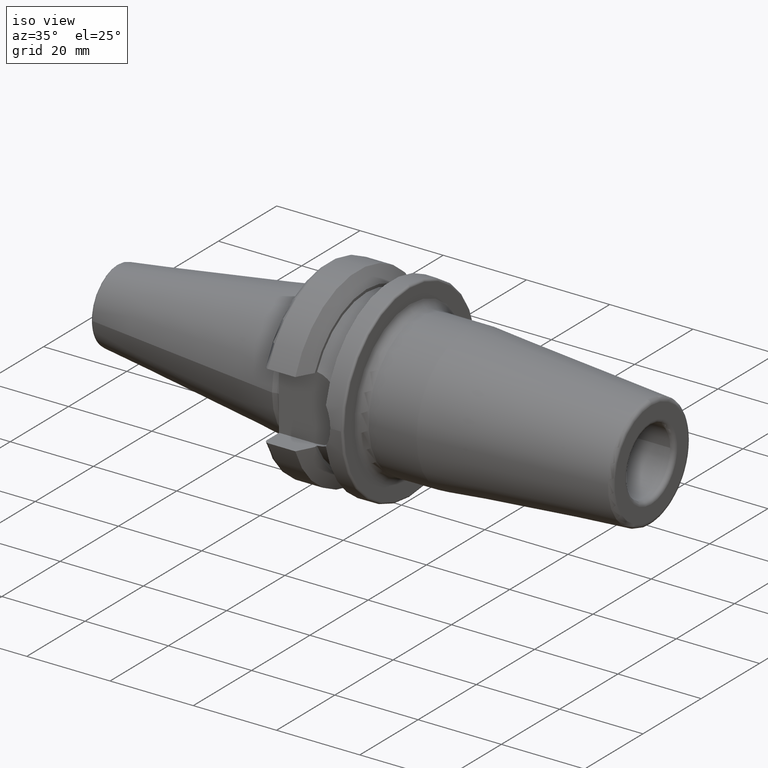
[diagram: clean part render]
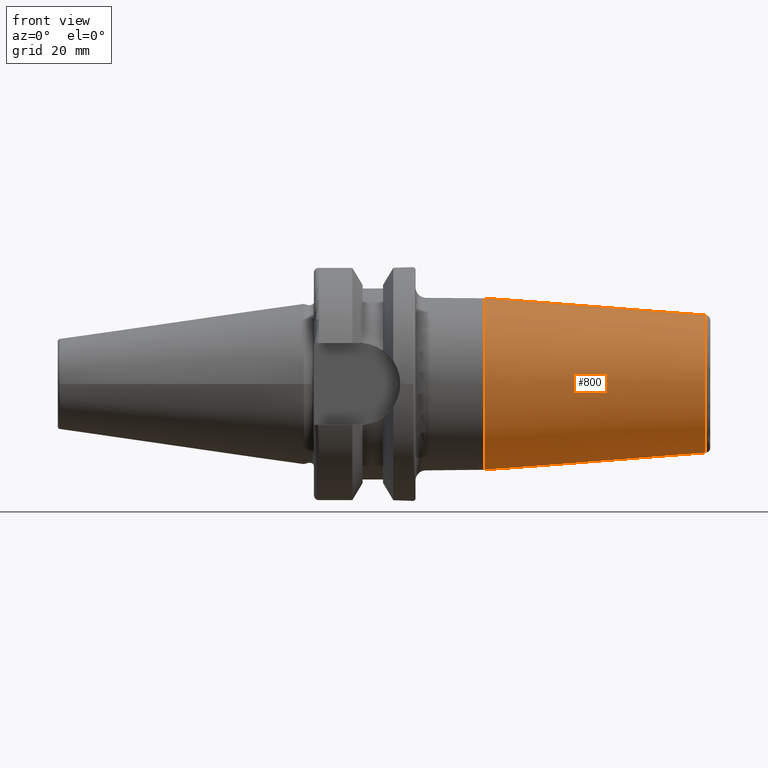
[diagram: tour spotlight — one face highlighted and labeled with its STEP entity id]
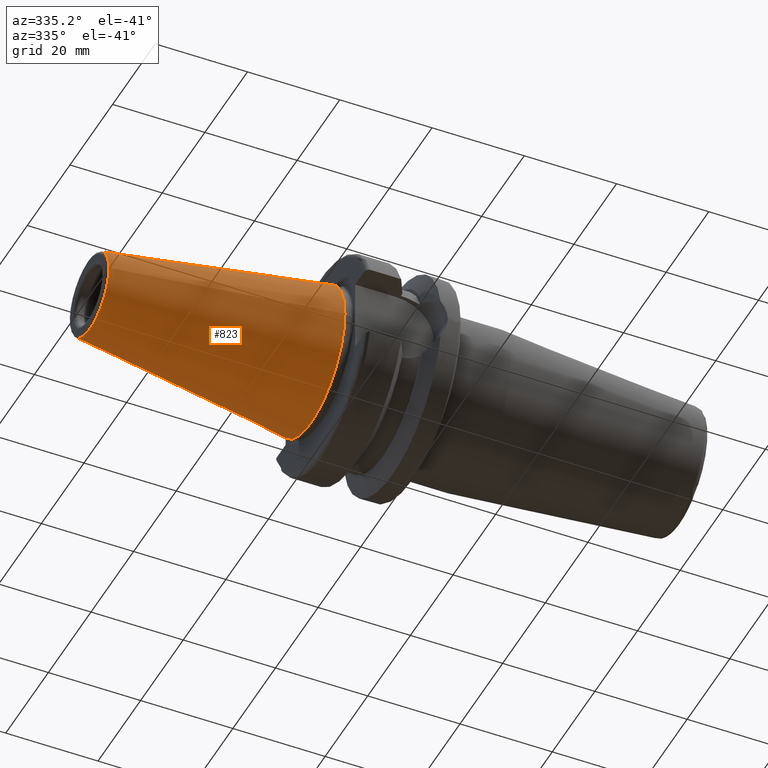
[diagram: tour spotlight — one face highlighted and labeled with its STEP entity id]
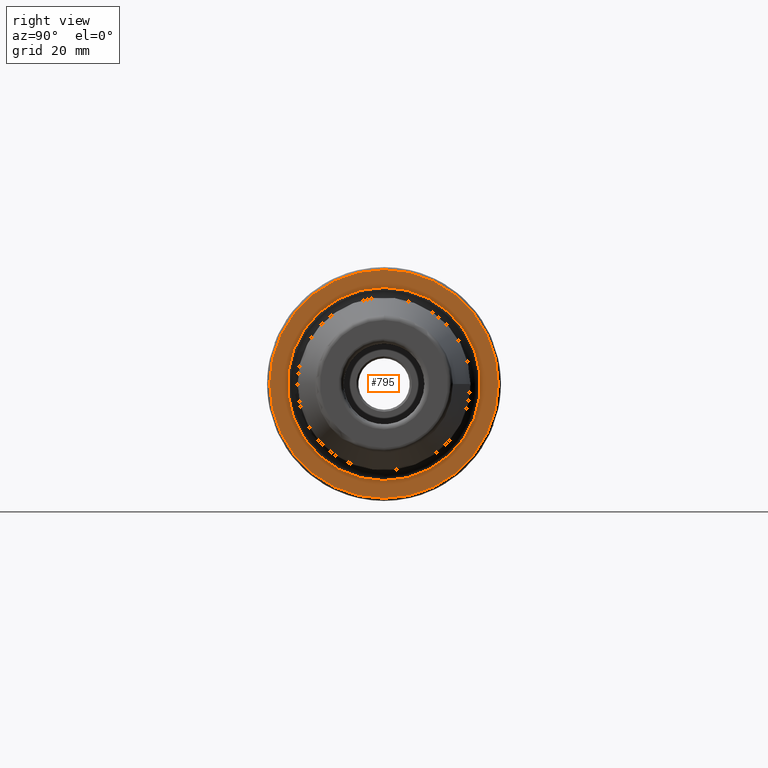
[diagram: tour spotlight — one face highlighted and labeled with its STEP entity id]
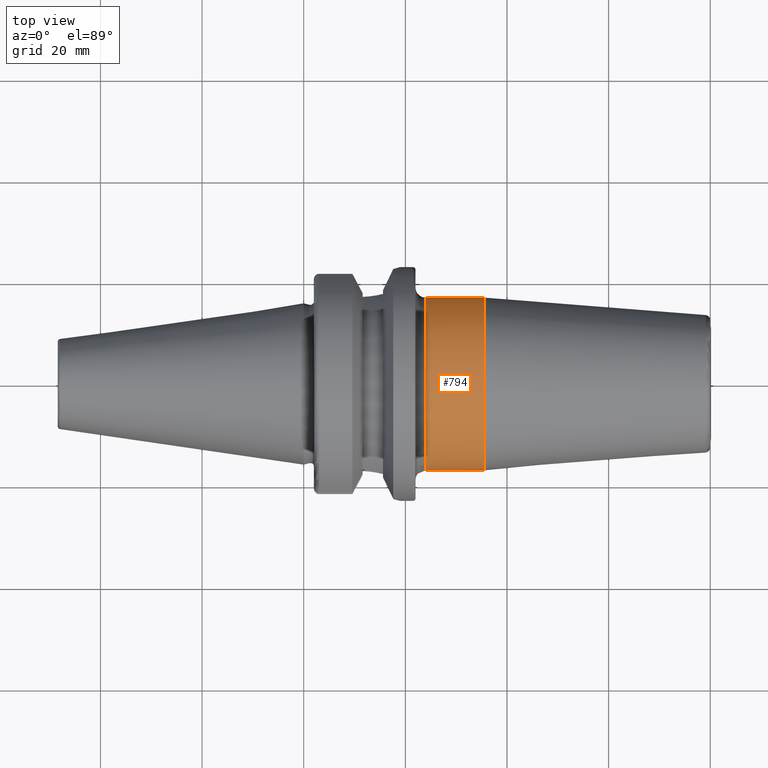
[diagram: tour spotlight — one face highlighted and labeled with its STEP entity id]
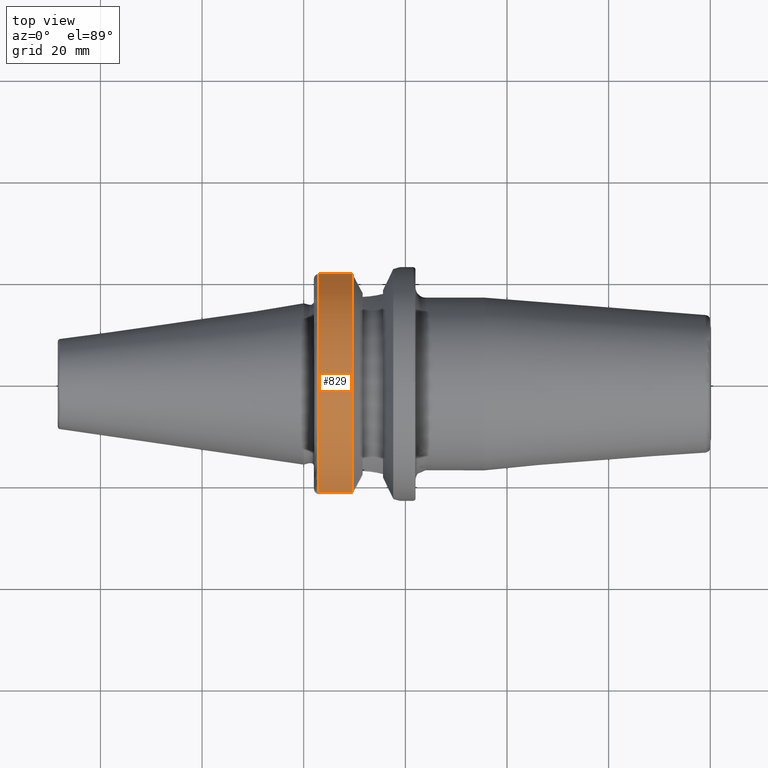
[diagram: tour spotlight — one face highlighted and labeled with its STEP entity id]
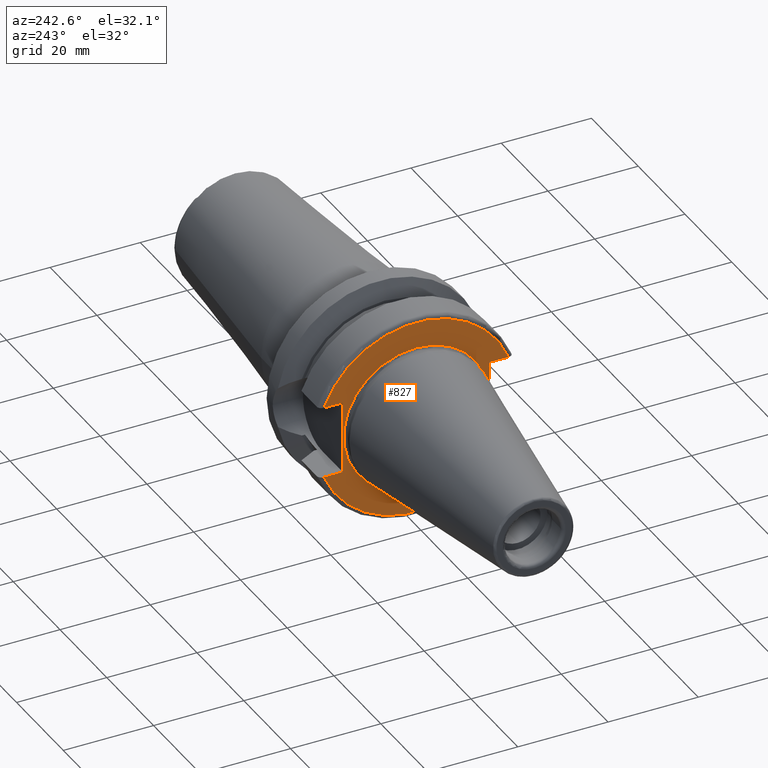
[diagram: tour spotlight — one face highlighted and labeled with its STEP entity id]
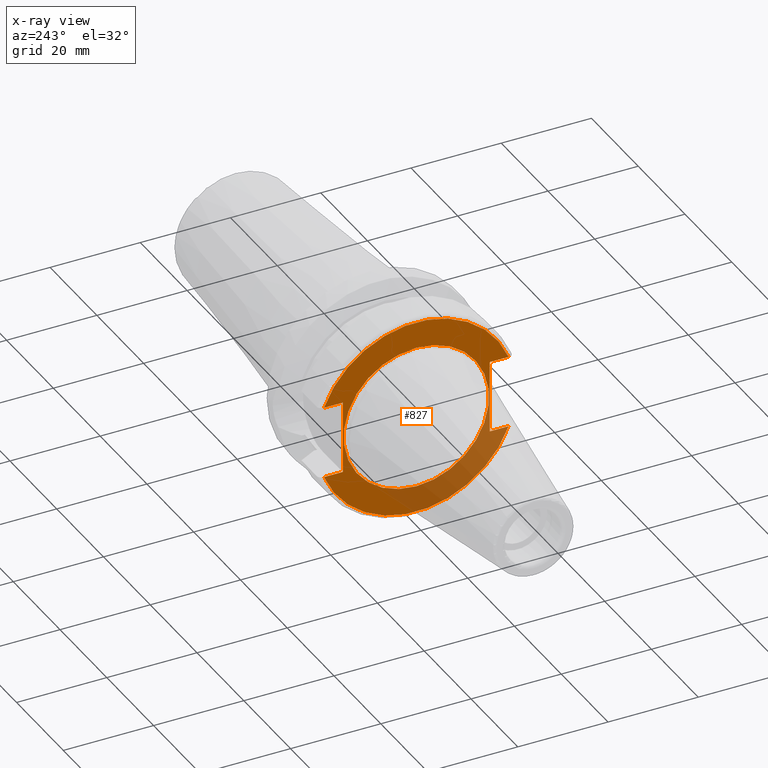
[diagram: x-ray of the same camera — body ghosted, this tour face saturated]
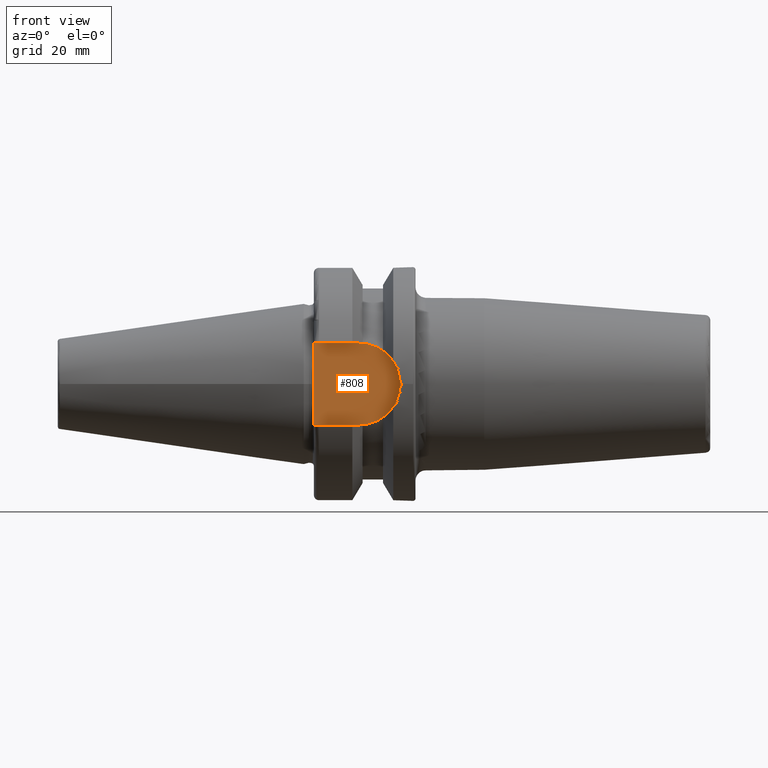
[diagram: tour spotlight — one face highlighted and labeled with its STEP entity id]
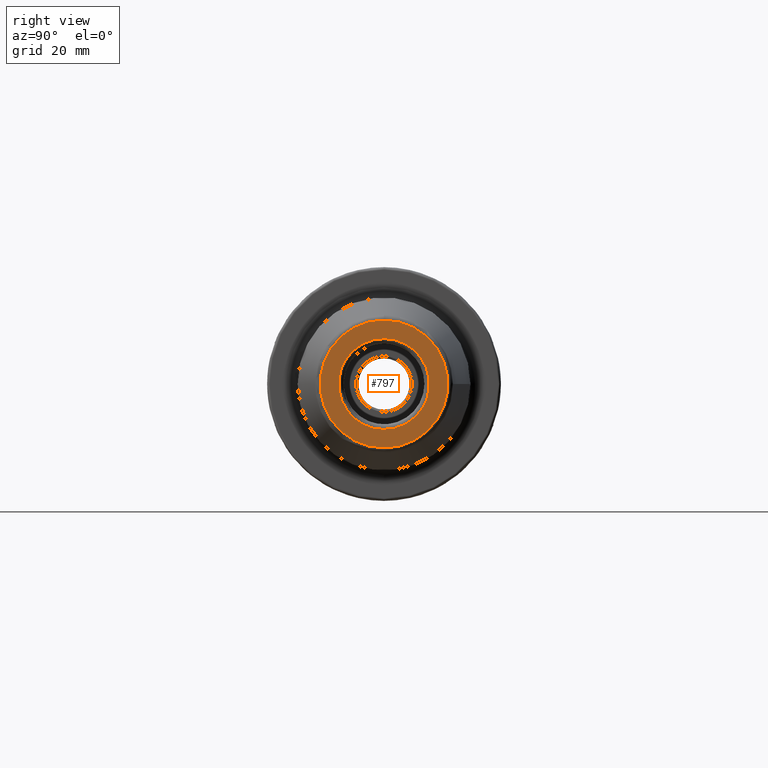
[diagram: tour spotlight — one face highlighted and labeled with its STEP entity id]
A machine part: a face-by-face anatomy tour. The part has 50 B-rep faces; the first image is the clean iso view, then the 8 largest visible faces are spotlighted one at a time (largest first), each with its STEP entity span.

Face 1 — front view, entity #800. In plain terms, the highlighted conical surface has half-angle 4.5 deg.
Definition (entity closure, byte-faithful):
#95=FACE_OUTER_BOUND('',#147,.T.);
#147=EDGE_LOOP('',(#574,#575,#576,#577,#578));
#197=LINE('',#1286,#237);
#237=VECTOR('',#1038,15.25);
#281=CIRCLE('',#876,17.);
#290=CIRCLE('',#890,13.5725268420749);
#291=CIRCLE('',#891,13.5725268420749);
#340=VERTEX_POINT('',#1258);
#347=VERTEX_POINT('',#1280);
#348=VERTEX_POINT('',#1282);
#423=EDGE_CURVE('',#340,#340,#281,.T.);
#434=EDGE_CURVE('',#347,#348,#290,.T.);
#435=EDGE_CURVE('',#348,#347,#291,.T.);
#436=EDGE_CURVE('',#348,#340,#197,.T.);
#574=ORIENTED_EDGE('',*,*,#434,.F.);
#575=ORIENTED_EDGE('',*,*,#435,.F.);
#576=ORIENTED_EDGE('',*,*,#436,.T.);
#577=ORIENTED_EDGE('',*,*,#423,.T.);
#578=ORIENTED_EDGE('',*,*,#436,.F.);
#783=CONICAL_SURFACE('',#892,15.25,0.0785398163397455);
#800=ADVANCED_FACE('',(#95),#783,.T.);
#876=AXIS2_PLACEMENT_3D('',#1259,#1002,#1003);
#890=AXIS2_PLACEMENT_3D('',#1283,#1032,#1033);
#891=AXIS2_PLACEMENT_3D('',#1284,#1034,#1035);
#892=AXIS2_PLACEMENT_3D('',#1285,#1036,#1037);
#1002=DIRECTION('center_axis',(1.,0.,0.));
#1003=DIRECTION('ref_axis',(0.,0.,-1.));
#1032=DIRECTION('center_axis',(1.,0.,0.));
#1033=DIRECTION('ref_axis',(0.,1.,3.06161699786838E-17));
#1034=DIRECTION('center_axis',(1.,0.,0.));
#1035=DIRECTION('ref_axis',(0.,1.,3.06161699786838E-17));
#1036=DIRECTION('center_axis',(-1.,0.,0.));
#1037=DIRECTION('ref_axis',(0.,-1.,0.));
#1038=DIRECTION('',(-0.996917333733128,0.0784590957278456,9.60846804471019E-18));
#1258=CARTESIAN_POINT('',(35.5282834233889,17.,2.0818995585505E-15));
#1259=CARTESIAN_POINT('Origin',(35.5282834233889,0.,0.));
#1280=CARTESIAN_POINT('',(79.0784590957279,-1.66215515534886E-15,13.5725268420749));
#1282=CARTESIAN_POINT('',(79.0784590957279,13.5725268420749,1.66215515534886E-15));
#1283=CARTESIAN_POINT('Origin',(79.0784590957279,0.,1.24661636651164E-15));
#1284=CARTESIAN_POINT('Origin',(79.0784590957279,0.,1.24661636651164E-15));
#1285=CARTESIAN_POINT('Origin',(57.7641417116944,0.,0.));
#1286=CARTESIAN_POINT('',(57.7641417116944,15.25,1.86758636869971E-15));

Face 2 — auxiliary view, entity #823. In plain terms, the highlighted conical surface has half-angle 8.297 deg.
Definition (entity closure, byte-faithful):
#118=FACE_OUTER_BOUND('',#172,.T.);
#172=EDGE_LOOP('',(#701,#702,#703,#704,#705));
#227=LINE('',#1553,#267);
#267=VECTOR('',#1158,12.3770304778568);
#309=CIRCLE('',#932,8.87906095571352);
#310=CIRCLE('',#933,8.87906095571352);
#313=CIRCLE('',#937,15.875);
#399=VERTEX_POINT('',#1543);
#400=VERTEX_POINT('',#1544);
#402=VERTEX_POINT('',#1551);
#506=EDGE_CURVE('',#399,#400,#309,.T.);
#507=EDGE_CURVE('',#400,#399,#310,.T.);
#510=EDGE_CURVE('',#402,#402,#313,.T.);
#511=EDGE_CURVE('',#402,#399,#227,.T.);
#701=ORIENTED_EDGE('',*,*,#510,.F.);
#702=ORIENTED_EDGE('',*,*,#511,.T.);
#703=ORIENTED_EDGE('',*,*,#506,.T.);
#704=ORIENTED_EDGE('',*,*,#507,.T.);
#705=ORIENTED_EDGE('',*,*,#511,.F.);
#787=CONICAL_SURFACE('',#936,12.3770304778568,0.144812498238939);
#823=ADVANCED_FACE('',(#118),#787,.T.);
#932=AXIS2_PLACEMENT_3D('',#1545,#1146,#1147);
#933=AXIS2_PLACEMENT_3D('',#1546,#1148,#1149);
#936=AXIS2_PLACEMENT_3D('',#1550,#1154,#1155);
#937=AXIS2_PLACEMENT_3D('',#1552,#1156,#1157);
#1146=DIRECTION('center_axis',(1.,1.62798202122572E-21,0.));
#1147=DIRECTION('ref_axis',(0.,0.,-1.));
#1148=DIRECTION('center_axis',(1.,1.62798202122572E-21,0.));
#1149=DIRECTION('ref_axis',(0.,0.,-1.));
#1154=DIRECTION('center_axis',(1.,1.62798202122572E-21,0.));
#1155=DIRECTION('ref_axis',(0.,1.,0.));
#1156=DIRECTION('center_axis',(1.,1.62798202122572E-21,0.));
#1157=DIRECTION('ref_axis',(0.,0.,-1.));
#1158=DIRECTION('',(-0.989532981063282,0.144306893071729,1.76724974695192E-17));
#1543=CARTESIAN_POINT('',(-47.9721534465359,-8.87906095571352,-1.08737135788488E-15));
#1544=CARTESIAN_POINT('',(-47.9721534465359,9.94286113939637E-16,8.87906095571352));
#1545=CARTESIAN_POINT('Origin',(-47.9721534465359,2.08165747182452E-15,
0.));
#1546=CARTESIAN_POINT('Origin',(-47.9721534465359,2.08165747182452E-15,
0.));
#1550=CARTESIAN_POINT('Origin',(-23.9860767232679,2.08169652072618E-15,
0.));
#1551=CARTESIAN_POINT('',(-1.33226762955019E-14,-15.875,-1.94412679364642E-15));
#1552=CARTESIAN_POINT('Origin',(-8.88178419700125E-15,2.08173556962785E-15,
0.));
#1553=CARTESIAN_POINT('',(-23.9860767232679,-12.3770304778568,-1.51574907576565E-15));

Face 3 — right view, entity #795. In plain terms, the highlighted planar face has unit normal (1, 0, 0).
Definition (entity closure, byte-faithful):
#38=FACE_BOUND('',#141,.T.);
#45=PLANE('',#877);
#90=FACE_OUTER_BOUND('',#140,.T.);
#140=EDGE_LOOP('',(#555));
#141=EDGE_LOOP('',(#556));
#280=CIRCLE('',#874,19.);
#282=CIRCLE('',#878,22.5);
#339=VERTEX_POINT('',#1254);
#341=VERTEX_POINT('',#1262);
#422=EDGE_CURVE('',#339,#339,#280,.T.);
#425=EDGE_CURVE('',#341,#341,#282,.T.);
#555=ORIENTED_EDGE('',*,*,#425,.T.);
#556=ORIENTED_EDGE('',*,*,#422,.F.);
#795=ADVANCED_FACE('',(#90,#38),#45,.T.);
#874=AXIS2_PLACEMENT_3D('',#1256,#998,#999);
#877=AXIS2_PLACEMENT_3D('',#1261,#1005,#1006);
#878=AXIS2_PLACEMENT_3D('',#1263,#1007,#1008);
#998=DIRECTION('center_axis',(1.,1.62798202122572E-21,0.));
#999=DIRECTION('ref_axis',(-1.62798202122572E-21,1.,1.22464679914735E-16));
#1005=DIRECTION('center_axis',(1.,1.62798202122572E-21,0.));
#1006=DIRECTION('ref_axis',(0.,0.,-1.));
#1007=DIRECTION('center_axis',(1.,1.62798202122572E-21,0.));
#1008=DIRECTION('ref_axis',(0.,0.,-1.));
#1254=CARTESIAN_POINT('',(22.,-2.32683217434401E-15,-19.));
#1256=CARTESIAN_POINT('Origin',(22.,-3.25596404245145E-21,0.));
#1261=CARTESIAN_POINT('Origin',(22.,2.0818995585505E-15,0.));
#1262=CARTESIAN_POINT('',(22.,-6.73683912849231E-16,22.5));
#1263=CARTESIAN_POINT('Origin',(22.,2.08177138523231E-15,0.));

Face 4 — top view, entity #794. In plain terms, the highlighted cylindrical surface (bore or boss wall) has radius 17 mm, axis along (1, 0, 0).
Definition (entity closure, byte-faithful):
#72=CYLINDRICAL_SURFACE('',#875,17.);
#89=FACE_OUTER_BOUND('',#139,.T.);
#139=EDGE_LOOP('',(#550,#551,#552,#553,#554));
#195=LINE('',#1260,#235);
#235=VECTOR('',#1004,17.);
#277=CIRCLE('',#871,17.);
#278=CIRCLE('',#872,17.);
#281=CIRCLE('',#876,17.);
#337=VERTEX_POINT('',#1250);
#338=VERTEX_POINT('',#1251);
#340=VERTEX_POINT('',#1258);
#419=EDGE_CURVE('',#337,#338,#277,.T.);
#420=EDGE_CURVE('',#338,#337,#278,.T.);
#423=EDGE_CURVE('',#340,#340,#281,.T.);
#424=EDGE_CURVE('',#340,#338,#195,.T.);
#550=ORIENTED_EDGE('',*,*,#423,.F.);
#551=ORIENTED_EDGE('',*,*,#424,.T.);
#552=ORIENTED_EDGE('',*,*,#419,.F.);
#553=ORIENTED_EDGE('',*,*,#420,.F.);
#554=ORIENTED_EDGE('',*,*,#424,.F.);
#794=ADVANCED_FACE('',(#89),#72,.T.);
#871=AXIS2_PLACEMENT_3D('',#1252,#992,#993);
#872=AXIS2_PLACEMENT_3D('',#1253,#994,#995);
#875=AXIS2_PLACEMENT_3D('',#1257,#1000,#1001);
#876=AXIS2_PLACEMENT_3D('',#1259,#1002,#1003);
#992=DIRECTION('center_axis',(-1.,-1.62798202122572E-21,0.));
#993=DIRECTION('ref_axis',(0.,1.,1.22464679914735E-16));
#994=DIRECTION('center_axis',(-1.,-1.62798202122572E-21,0.));
#995=DIRECTION('ref_axis',(0.,1.,1.22464679914735E-16));
#1000=DIRECTION('center_axis',(1.,0.,0.));
#1001=DIRECTION('ref_axis',(0.,-1.,0.));
#1002=DIRECTION('center_axis',(1.,0.,0.));
#1003=DIRECTION('ref_axis',(0.,0.,-1.));
#1004=DIRECTION('',(-1.,0.,0.));
#1250=CARTESIAN_POINT('',(24.,-2.0818995585505E-15,-17.));
#1251=CARTESIAN_POINT('',(24.,17.,2.0818995585505E-15));
#1252=CARTESIAN_POINT('Origin',(24.,0.,0.));
#1253=CARTESIAN_POINT('Origin',(24.,0.,0.));
#1257=CARTESIAN_POINT('Origin',(28.7641417116944,0.,0.));
#1258=CARTESIAN_POINT('',(35.5282834233889,17.,2.0818995585505E-15));
#1259=CARTESIAN_POINT('Origin',(35.5282834233889,0.,0.));
#1260=CARTESIAN_POINT('',(28.7641417116944,17.,2.0818995585505E-15));

Face 5 — top view, entity #829. In plain terms, the highlighted cylindrical surface (partial cylindrical patch) has radius 23 mm, axis along (1, 0, 0).
Definition (entity closure, byte-faithful):
#82=CYLINDRICAL_SURFACE('',#950,23.);
#124=FACE_OUTER_BOUND('',#179,.T.);
#179=EDGE_LOOP('',(#733,#734,#735,#736));
#206=LINE('',#1372,#246);
#223=LINE('',#1533,#263);
#246=VECTOR('',#1067,10.);
#263=VECTOR('',#1132,10.);
#320=CIRCLE('',#949,23.);
#321=CIRCLE('',#951,23.);
#367=VERTEX_POINT('',#1367);
#368=VERTEX_POINT('',#1371);
#394=VERTEX_POINT('',#1514);
#397=VERTEX_POINT('',#1522);
#458=EDGE_CURVE('',#368,#367,#206,.T.);
#501=EDGE_CURVE('',#394,#397,#223,.T.);
#520=EDGE_CURVE('',#397,#368,#320,.T.);
#521=EDGE_CURVE('',#394,#367,#321,.T.);
#733=ORIENTED_EDGE('',*,*,#458,.T.);
#734=ORIENTED_EDGE('',*,*,#521,.F.);
#735=ORIENTED_EDGE('',*,*,#501,.T.);
#736=ORIENTED_EDGE('',*,*,#520,.T.);
#829=ADVANCED_FACE('',(#124),#82,.T.);
#949=AXIS2_PLACEMENT_3D('',#1571,#1183,#1184);
#950=AXIS2_PLACEMENT_3D('',#1572,#1185,#1186);
#951=AXIS2_PLACEMENT_3D('',#1573,#1187,#1188);
#1067=DIRECTION('',(1.,1.62798202122572E-21,0.));
#1132=DIRECTION('',(-1.,-1.62798202122572E-21,0.));
#1183=DIRECTION('center_axis',(1.,1.62798202122572E-21,0.));
#1184=DIRECTION('ref_axis',(0.,0.,-1.));
#1185=DIRECTION('center_axis',(1.,1.62798202122572E-21,0.));
#1186=DIRECTION('ref_axis',(0.,1.,0.));
#1187=DIRECTION('center_axis',(1.,1.62798202122572E-21,0.));
#1188=DIRECTION('ref_axis',(0.,0.,-1.));
#1367=CARTESIAN_POINT('',(9.57005904049381,-21.5452430944744,8.05));
#1371=CARTESIAN_POINT('',(2.99999999999999,-21.5452430944745,8.05));
#1372=CARTESIAN_POINT('',(6.2850295202469,-21.5452430944745,8.05));
#1514=CARTESIAN_POINT('',(9.57005904049381,21.5452430944744,8.05));
#1522=CARTESIAN_POINT('',(2.99999999999999,21.5452430944745,8.05));
#1533=CARTESIAN_POINT('',(6.2850295202469,21.5452430944745,8.05));
#1571=CARTESIAN_POINT('Origin',(2.99999999999999,2.08174045357391E-15,0.));
#1572=CARTESIAN_POINT('Origin',(6.2850295202469,2.08174580154291E-15,0.));
#1573=CARTESIAN_POINT('Origin',(9.57005904049381,2.08175114951191E-15,0.));

Face 6 — auxiliary view, entity #827. An x-ray twin of the same camera follows (body ghosted, this face saturated) — the face is partly hidden behind the body. In plain terms, the highlighted planar face has unit normal (-1, -0, 0).
Definition (entity closure, byte-faithful):
#42=FACE_BOUND('',#177,.T.);
#57=PLANE('',#946);
#122=FACE_OUTER_BOUND('',#176,.T.);
#176=EDGE_LOOP('',(#720,#721,#722,#723,#724,#725,#726,#727));
#177=EDGE_LOOP('',(#728));
#207=LINE('',#1385,#247);
#210=LINE('',#1395,#250);
#212=LINE('',#1409,#252);
#222=LINE('',#1521,#262);
#224=LINE('',#1536,#264);
#226=LINE('',#1539,#266);
#247=VECTOR('',#1068,10.);
#250=VECTOR('',#1073,10.);
#252=VECTOR('',#1077,10.);
#262=VECTOR('',#1131,10.);
#264=VECTOR('',#1135,10.);
#266=VECTOR('',#1139,10.);
#306=CIRCLE('',#923,22.);
#318=CIRCLE('',#945,16.1);
#319=CIRCLE('',#947,22.);
#369=VERTEX_POINT('',#1373);
#370=VERTEX_POINT('',#1384);
#372=VERTEX_POINT('',#1392);
#373=VERTEX_POINT('',#1394);
#386=VERTEX_POINT('',#1472);
#395=VERTEX_POINT('',#1518);
#396=VERTEX_POINT('',#1520);
#398=VERTEX_POINT('',#1535);
#406=VERTEX_POINT('',#1565);
#460=EDGE_CURVE('',#370,#369,#207,.T.);
#464=EDGE_CURVE('',#373,#372,#210,.T.);
#467=EDGE_CURVE('',#372,#370,#212,.T.);
#487=EDGE_CURVE('',#373,#386,#306,.T.);
#499=EDGE_CURVE('',#396,#395,#222,.T.);
#502=EDGE_CURVE('',#398,#386,#224,.T.);
#504=EDGE_CURVE('',#395,#398,#226,.T.);
#518=EDGE_CURVE('',#406,#406,#318,.T.);
#519=EDGE_CURVE('',#396,#369,#319,.T.);
#720=ORIENTED_EDGE('',*,*,#460,.T.);
#721=ORIENTED_EDGE('',*,*,#519,.F.);
#722=ORIENTED_EDGE('',*,*,#499,.T.);
#723=ORIENTED_EDGE('',*,*,#504,.T.);
#724=ORIENTED_EDGE('',*,*,#502,.T.);
#725=ORIENTED_EDGE('',*,*,#487,.F.);
#726=ORIENTED_EDGE('',*,*,#464,.T.);
#727=ORIENTED_EDGE('',*,*,#467,.T.);
#728=ORIENTED_EDGE('',*,*,#518,.T.);
#827=ADVANCED_FACE('',(#122,#42),#57,.T.);
#923=AXIS2_PLACEMENT_3D('',#1473,#1118,#1119);
#945=AXIS2_PLACEMENT_3D('',#1567,#1175,#1176);
#946=AXIS2_PLACEMENT_3D('',#1568,#1177,#1178);
#947=AXIS2_PLACEMENT_3D('',#1569,#1179,#1180);
#1068=DIRECTION('',(1.62798202122572E-21,-1.,0.));
#1073=DIRECTION('',(-1.62798202122572E-21,1.,-8.07786870900826E-37));
#1077=DIRECTION('',(0.,0.,1.));
#1118=DIRECTION('center_axis',(1.,1.62798202122572E-21,0.));
#1119=DIRECTION('ref_axis',(0.,0.,-1.));
#1131=DIRECTION('',(1.62798202122572E-21,-1.,0.));
#1135=DIRECTION('',(-1.62798202122572E-21,1.,-8.07786870900826E-37));
#1139=DIRECTION('',(0.,0.,-1.));
#1175=DIRECTION('center_axis',(1.,1.62798202122572E-21,0.));
#1176=DIRECTION('ref_axis',(0.,0.,-1.));
#1177=DIRECTION('center_axis',(-1.,-1.62798202122572E-21,0.));
#1178=DIRECTION('ref_axis',(0.,0.,1.));
#1179=DIRECTION('center_axis',(1.,1.62798202122572E-21,0.));
#1180=DIRECTION('ref_axis',(0.,0.,-1.));
#1373=CARTESIAN_POINT('',(1.99999999999999,-20.4743131752936,8.05));
#1384=CARTESIAN_POINT('',(1.99999999999999,-16.3,8.05));
#1385=CARTESIAN_POINT('',(1.99999999999999,2.85,8.05));
#1392=CARTESIAN_POINT('',(1.99999999999999,-16.3,-8.05));
#1394=CARTESIAN_POINT('',(1.99999999999999,-20.4743131752936,-8.05));
#1395=CARTESIAN_POINT('',(1.99999999999999,2.85,-8.05));
#1409=CARTESIAN_POINT('',(1.99999999999999,-16.3,0.));
#1472=CARTESIAN_POINT('',(1.99999999999999,20.4743131752936,-8.05));
#1473=CARTESIAN_POINT('Origin',(1.99999999999999,2.08173882559189E-15,0.));
#1518=CARTESIAN_POINT('',(1.99999999999999,16.3,8.05));
#1520=CARTESIAN_POINT('',(1.99999999999999,20.4743131752936,8.05));
#1521=CARTESIAN_POINT('',(1.99999999999999,19.15,8.05));
#1535=CARTESIAN_POINT('',(1.99999999999999,16.3,-8.05));
#1536=CARTESIAN_POINT('',(1.99999999999999,19.15,-8.05));
#1539=CARTESIAN_POINT('',(1.99999999999999,16.3,0.));
#1565=CARTESIAN_POINT('',(1.99999999999999,1.10057478964651E-16,16.1));
#1567=CARTESIAN_POINT('Origin',(1.99999999999999,2.08173882559189E-15,0.));
#1568=CARTESIAN_POINT('Origin',(1.99999999999999,22.,0.));
#1569=CARTESIAN_POINT('Origin',(1.99999999999999,2.08173882559189E-15,0.));

Face 7 — front view, entity #808. In plain terms, the highlighted planar face has unit normal (0, 1, 0).
Definition (entity closure, byte-faithful):
#51=PLANE('',#904);
#103=FACE_OUTER_BOUND('',#157,.T.);
#157=EDGE_LOOP('',(#619,#620,#621,#622));
#208=LINE('',#1386,#248);
#209=LINE('',#1393,#249);
#212=LINE('',#1409,#252);
#248=VECTOR('',#1069,10.);
#249=VECTOR('',#1072,10.);
#252=VECTOR('',#1077,10.);
#295=CIRCLE('',#901,8.05);
#365=VERTEX_POINT('',#1361);
#366=VERTEX_POINT('',#1363);
#370=VERTEX_POINT('',#1384);
#372=VERTEX_POINT('',#1392);
#455=EDGE_CURVE('',#365,#366,#295,.T.);
#461=EDGE_CURVE('',#370,#365,#208,.T.);
#463=EDGE_CURVE('',#366,#372,#209,.T.);
#467=EDGE_CURVE('',#372,#370,#212,.T.);
#619=ORIENTED_EDGE('',*,*,#463,.F.);
#620=ORIENTED_EDGE('',*,*,#455,.F.);
#621=ORIENTED_EDGE('',*,*,#461,.F.);
#622=ORIENTED_EDGE('',*,*,#467,.F.);
#808=ADVANCED_FACE('',(#103),#51,.F.);
#901=AXIS2_PLACEMENT_3D('',#1364,#1062,#1063);
#904=AXIS2_PLACEMENT_3D('',#1408,#1075,#1076);
#1062=DIRECTION('center_axis',(0.,1.,0.));
#1063=DIRECTION('ref_axis',(0.,0.,1.));
#1069=DIRECTION('',(1.,0.,0.));
#1072=DIRECTION('',(-1.,0.,-4.96189061284986E-16));
#1075=DIRECTION('center_axis',(0.,1.,0.));
#1076=DIRECTION('ref_axis',(0.,0.,1.));
#1077=DIRECTION('',(0.,0.,1.));
#1361=CARTESIAN_POINT('',(10.95,-16.3,8.05));
#1363=CARTESIAN_POINT('',(10.95,-16.3,-8.05));
#1364=CARTESIAN_POINT('Origin',(10.95,-16.3,0.));
#1384=CARTESIAN_POINT('',(1.99999999999999,-16.3,8.05));
#1386=CARTESIAN_POINT('',(1.99999999999999,-16.3,8.05));
#1392=CARTESIAN_POINT('',(1.99999999999999,-16.3,-8.05));
#1393=CARTESIAN_POINT('',(10.95,-16.3,-8.05));
#1408=CARTESIAN_POINT('Origin',(10.5,-16.3,0.));
#1409=CARTESIAN_POINT('',(1.99999999999999,-16.3,0.));

Face 8 — right view, entity #797. In plain terms, the highlighted planar face has unit normal (1, 0, 0).
Definition (entity closure, byte-faithful):
#39=FACE_BOUND('',#144,.T.);
#46=PLANE('',#884);
#92=FACE_OUTER_BOUND('',#143,.T.);
#143=EDGE_LOOP('',(#562));
#144=EDGE_LOOP('',(#563));
#285=CIRCLE('',#882,8.9375);
#287=CIRCLE('',#885,12.5756095083418);
#344=VERTEX_POINT('',#1268);
#345=VERTEX_POINT('',#1273);
#428=EDGE_CURVE('',#344,#344,#285,.T.);
#430=EDGE_CURVE('',#345,#345,#287,.T.);
#562=ORIENTED_EDGE('',*,*,#430,.F.);
#563=ORIENTED_EDGE('',*,*,#428,.F.);
#797=ADVANCED_FACE('',(#92,#39),#46,.T.);
#882=AXIS2_PLACEMENT_3D('',#1270,#1015,#1016);
#884=AXIS2_PLACEMENT_3D('',#1272,#1019,#1020);
#885=AXIS2_PLACEMENT_3D('',#1274,#1021,#1022);
#1015=DIRECTION('center_axis',(1.,0.,0.));
#1016=DIRECTION('ref_axis',(0.,1.,-6.12323399573676E-17));
#1019=DIRECTION('center_axis',(1.,0.,0.));
#1020=DIRECTION('ref_axis',(0.,0.,-1.));
#1021=DIRECTION('center_axis',(-1.,0.,0.));
#1022=DIRECTION('ref_axis',(0.,1.,-6.12323399573677E-17));
#1268=CARTESIAN_POINT('',(80.,-1.09452807673795E-15,8.9375));
#1270=CARTESIAN_POINT('Origin',(80.,0.,0.));
#1272=CARTESIAN_POINT('Origin',(80.,-7.9375,0.));
#1273=CARTESIAN_POINT('',(80.,-1.54006799317178E-15,12.5756095083418));
#1274=CARTESIAN_POINT('Origin',(80.,0.,0.));